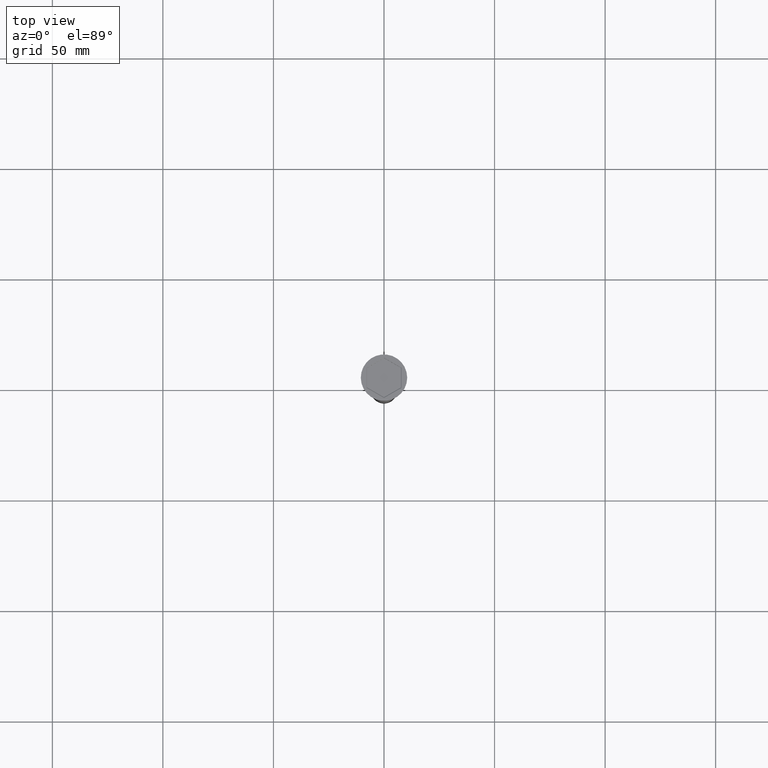
[diagram: clean part render]
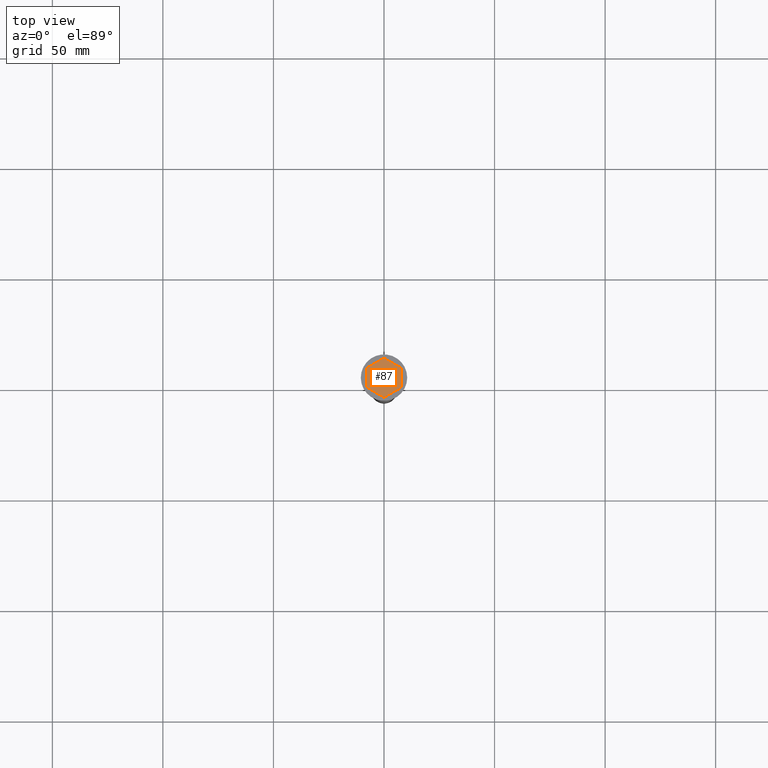
[diagram: same view with one face highlighted and labeled with its STEP entity id]
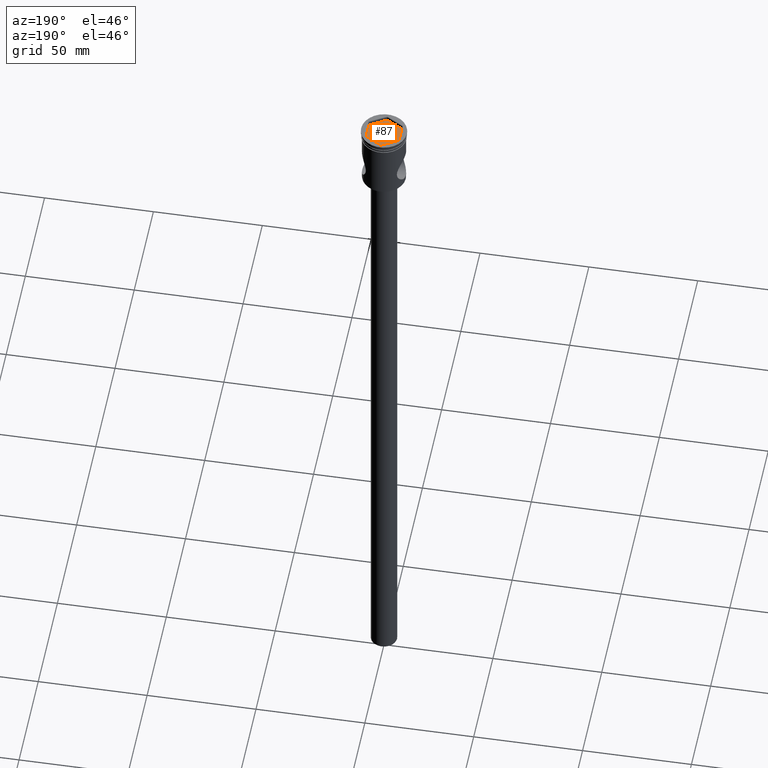
[diagram: same view with one face highlighted and labeled with its STEP entity id]
A machine part, top view. The second image highlights one B-rep face of the part: STEP entity #87.
A second angle (auxiliary view) of the same face is appended — the face is thin or edge-on in the first view.
In plain terms, the highlighted planar face has unit normal (-0, 0, 1).
Its self-contained STEP definition (entity closure, byte-faithful):
#27 = DIRECTION ( 'NONE',  ( 0.8660254037844387076, -0.4999999999999999445, 0.000000000000000000 ) ) ;
#87 = ADVANCED_FACE ( 'NONE', ( #1235 ), #640, .T. ) ;
#101 = ORIENTED_EDGE ( 'NONE', *, *, #989, .T. ) ;
#130 = EDGE_LOOP ( 'NONE', ( #1167, #101, #1496, #1046, #1457, #1280 ) ) ;
#149 = DIRECTION ( 'NONE',  ( -0.000000000000000000, 0.000000000000000000, 1.000000000000000000 ) ) ;
#157 = EDGE_CURVE ( 'NONE', #197, #533, #969, .T. ) ;
#175 = VECTOR ( 'NONE', #1322, 1000.000000000000000 ) ;
#197 = VERTEX_POINT ( 'NONE', #917 ) ;
#220 = AXIS2_PLACEMENT_3D ( 'NONE', #1224, #149, #797 ) ;
#229 = EDGE_CURVE ( 'NONE', #533, #1330, #616, .T. ) ;
#241 = CARTESIAN_POINT ( 'NONE',  ( 7.700000000000000178, 4.445597072760118174, -2.000000000000000000 ) ) ;
#248 = VECTOR ( 'NONE', #406, 1000.000000000000000 ) ;
#316 = LINE ( 'NONE', #1122, #851 ) ;
#357 = EDGE_CURVE ( 'NONE', #1129, #922, #908, .T. ) ;
#406 = DIRECTION ( 'NONE',  ( -9.755289602189348473E-17, -1.000000000000000000, 0.000000000000000000 ) ) ;
#414 = CARTESIAN_POINT ( 'NONE',  ( -4.336808689942017736E-16, -8.891194145520236347, -2.000000000000000000 ) ) ;
#531 = DIRECTION ( 'NONE',  ( 0.8660254037844387076, 0.4999999999999997780, 0.000000000000000000 ) ) ;
#533 = VERTEX_POINT ( 'NONE', #1401 ) ;
#616 = LINE ( 'NONE', #1421, #870 ) ;
#624 = CARTESIAN_POINT ( 'NONE',  ( 7.699999999999999289, -4.445597072760119950, -2.000000000000000000 ) ) ;
#627 = CARTESIAN_POINT ( 'NONE',  ( -7.699999999999999289, 4.445597072760116397, -2.000000000000000000 ) ) ;
#640 = PLANE ( 'NONE',  #220 ) ;
#715 = DIRECTION ( 'NONE',  ( -0.8660254037844385966, 0.4999999999999999445, 0.000000000000000000 ) ) ;
#797 = DIRECTION ( 'NONE',  ( 1.000000000000000000, 0.000000000000000000, 0.000000000000000000 ) ) ;
#851 = VECTOR ( 'NONE', #1462, 1000.000000000000000 ) ;
#870 = VECTOR ( 'NONE', #27, 999.9999999999998863 ) ;
#908 = LINE ( 'NONE', #241, #1358 ) ;
#917 = CARTESIAN_POINT ( 'NONE',  ( -7.699999999999999289, 4.445597072760116397, -2.000000000000000000 ) ) ;
#922 = VERTEX_POINT ( 'NONE', #1087 ) ;
#928 = EDGE_CURVE ( 'NONE', #1330, #1523, #1276, .T. ) ;
#958 = LINE ( 'NONE', #624, #175 ) ;
#964 = CARTESIAN_POINT ( 'NONE',  ( 7.699999999999999289, -4.445597072760119950, -2.000000000000000000 ) ) ;
#969 = LINE ( 'NONE', #627, #248 ) ;
#989 = EDGE_CURVE ( 'NONE', #922, #197, #316, .T. ) ;
#995 = VECTOR ( 'NONE', #531, 1000.000000000000114 ) ;
#1046 = ORIENTED_EDGE ( 'NONE', *, *, #229, .T. ) ;
#1080 = CARTESIAN_POINT ( 'NONE',  ( -4.336808689942017736E-16, -8.891194145520236347, -2.000000000000000000 ) ) ;
#1087 = CARTESIAN_POINT ( 'NONE',  ( 8.673617379884035472E-16, 8.891194145520236347, -2.000000000000000000 ) ) ;
#1122 = CARTESIAN_POINT ( 'NONE',  ( 8.673617379884035472E-16, 8.891194145520236347, -2.000000000000000000 ) ) ;
#1129 = VERTEX_POINT ( 'NONE', #1170 ) ;
#1156 = EDGE_CURVE ( 'NONE', #1523, #1129, #958, .T. ) ;
#1167 = ORIENTED_EDGE ( 'NONE', *, *, #357, .T. ) ;
#1170 = CARTESIAN_POINT ( 'NONE',  ( 7.700000000000000178, 4.445597072760118174, -2.000000000000000000 ) ) ;
#1224 = CARTESIAN_POINT ( 'NONE',  ( 0.000000000000000000, 0.000000000000000000, -2.000000000000000000 ) ) ;
#1235 = FACE_OUTER_BOUND ( 'NONE', #130, .T. ) ;
#1276 = LINE ( 'NONE', #414, #995 ) ;
#1280 = ORIENTED_EDGE ( 'NONE', *, *, #1156, .T. ) ;
#1322 = DIRECTION ( 'NONE',  ( 9.755289602189344775E-17, 1.000000000000000000, 0.000000000000000000 ) ) ;
#1330 = VERTEX_POINT ( 'NONE', #1080 ) ;
#1358 = VECTOR ( 'NONE', #715, 1000.000000000000114 ) ;
#1401 = CARTESIAN_POINT ( 'NONE',  ( -7.700000000000000178, -4.445597072760118174, -2.000000000000000000 ) ) ;
#1421 = CARTESIAN_POINT ( 'NONE',  ( -7.700000000000000178, -4.445597072760118174, -2.000000000000000000 ) ) ;
#1457 = ORIENTED_EDGE ( 'NONE', *, *, #928, .T. ) ;
#1462 = DIRECTION ( 'NONE',  ( -0.8660254037844385966, -0.5000000000000001110, 0.000000000000000000 ) ) ;
#1496 = ORIENTED_EDGE ( 'NONE', *, *, #157, .T. ) ;
#1523 = VERTEX_POINT ( 'NONE', #964 ) ;